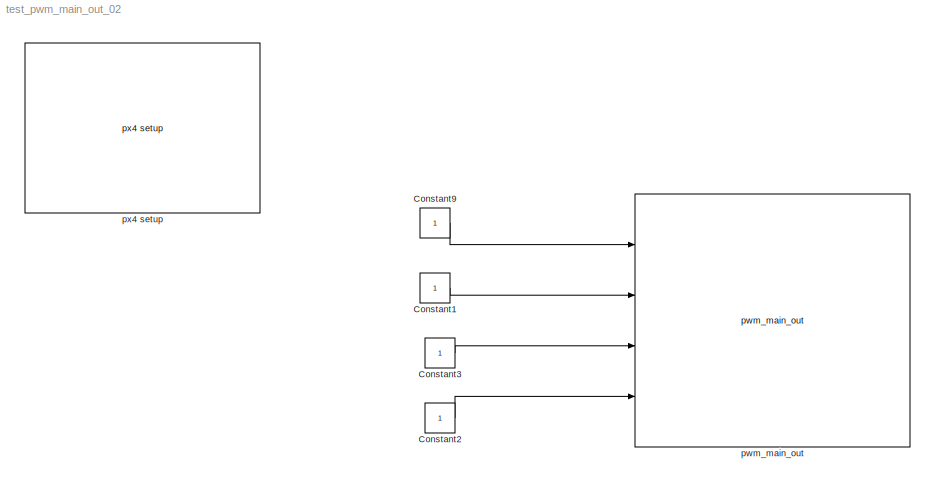
MODEL test_pwm_main_out_02
KIND model
CONFIG InitFcn = px4_ap1_mdl_callback('check_model');
BLOCK [Constant] Constant1
  OutDataTypeStr = boolean
  SID = 1
BLOCK [Constant] Constant2
  OutDataTypeStr = uint16
  SID = 2
BLOCK [Constant] Constant3
  OutDataTypeStr = uint16
  SID = 3
BLOCK [Constant] Constant9
  OutDataTypeStr = boolean
  SID = 4
BLOCK [Reference] pwm_main_out  REF=px4_ap1_pwm_main_out_lib/pwm_main_out
  Description = Setup for PX4 native software
  Ports = [4]
  SID = 5
  SourceBlock = px4_ap1_pwm_main_out_lib/pwm_main_out
  SourceType = PX4_PWM_MAIN_OUT
  alt_pwm = 400
  def_pwm = 50
  main1 = on
  main2 = off
  main3 = off
  main4 = off
  main5 = off
  main6 = off
  main7 = off
  main8 = on
  pwm_1_2 = Alternate
  pwm_3_4 = Alternate
  pwm_5_8 = Alternate
BLOCK [Reference] px4 setup  REF=px4_ap1_px4setup_lib/px4 setup
  Ports = [0, 1]
  SID = 6
  SampleTimeValue = 0.01
  SourceBlock = px4_ap1_px4setup_lib/px4 setup
  SourceType = PX4_Target_Setup
  cbBuild = on
  cbPort = COM3
  cbUpload = off
  cpuLoad = on
  debugmode = on
LINE Constant1:1 -> pwm_main_out:2
LINE Constant2:1 -> pwm_main_out:4
LINE Constant3:1 -> pwm_main_out:3
LINE Constant9:1 -> pwm_main_out:1
